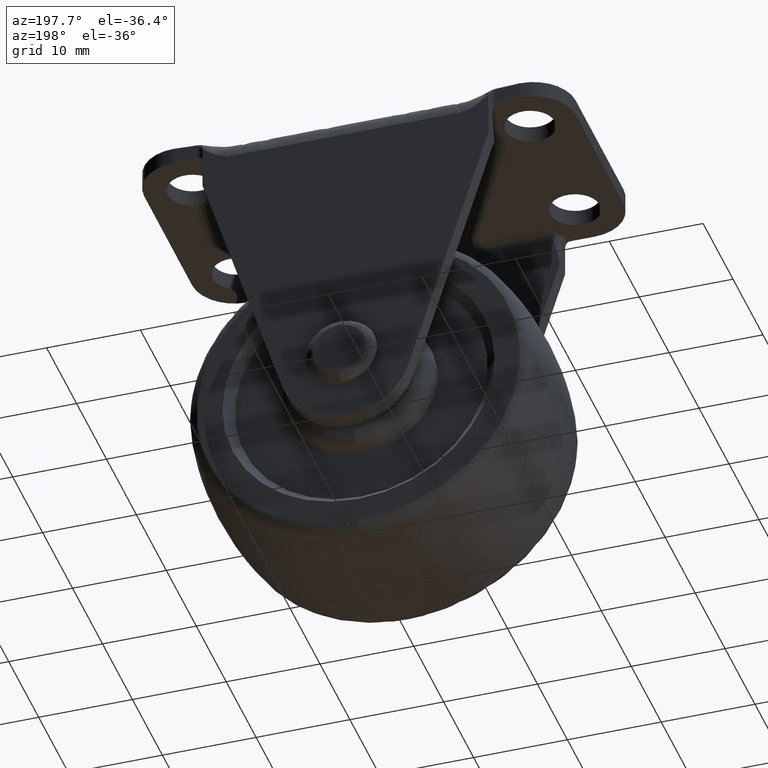
[diagram: clean part render]
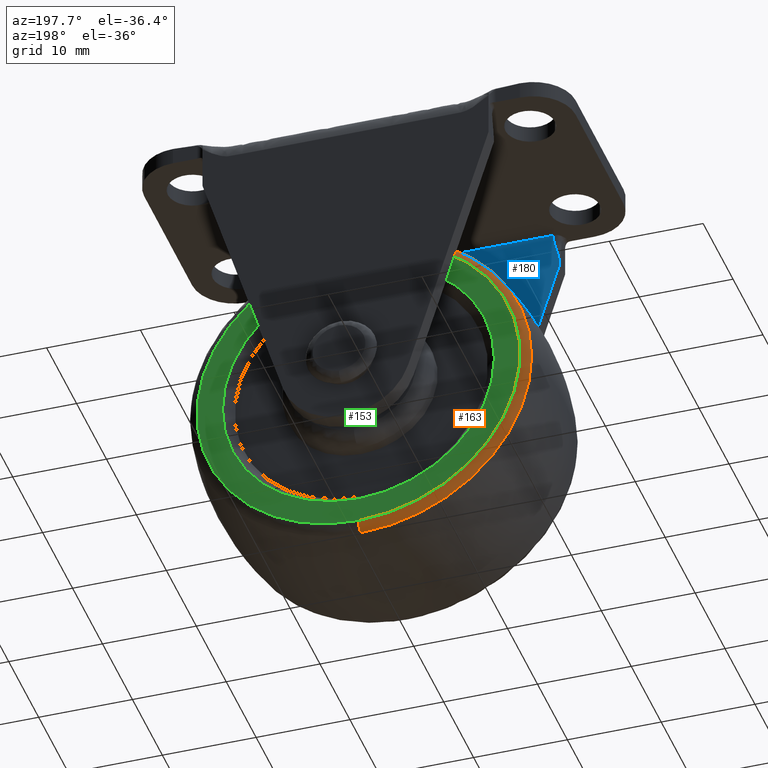
[diagram: same view with three faces highlighted in distinct colors, each labeled with its STEP entity id]
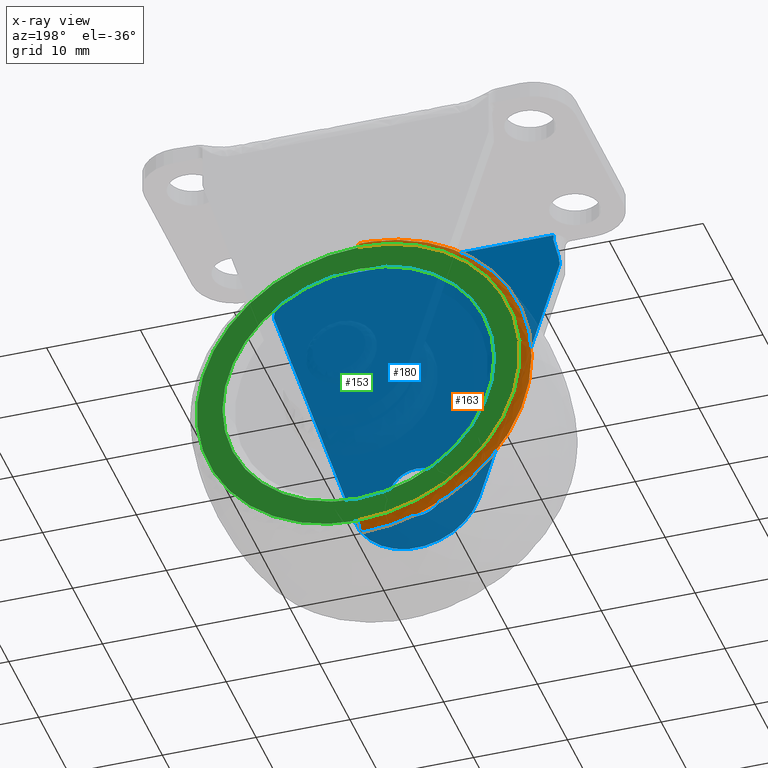
[diagram: x-ray of the same camera — body ghosted, the three highlighted faces saturated]
A machine part, auxiliary view with three faces highlighted in distinct colors.
The next image is the same camera in x-ray (body ghosted, the three faces saturated) — at least one of them is partly hidden behind the body in this view.
Their STEP definitions:

[orange] entity #163 — the highlighted face is a freeform B-spline surface patch.
#163=ADVANCED_FACE('',(#409),#408,.T.);
#408=( BOUNDED_SURFACE() B_SPLINE_SURFACE( 2,2,((#1607,#1608,#1609,#1610,#1611),(#1612,#1613,#1614,#1615,#1616),(#1617,#1618,#1619,#1620,#1621),(#1622,#1623,#1624,#1625,#1626),(#1627,#1628,#1629,#1630,#1631)), .UNSPECIFIED.,.F.,.F.,.F.) B_SPLINE_SURFACE_WITH_KNOTS((3,2,3),(3,2,3),(0.00000000000E+00,5.00000000000E-01,1.00000000000E+00),(0.00000000000E+00,5.00000000000E-01,1.00000000000E+00), .UNSPECIFIED. ) GEOMETRIC_REPRESENTATION_ITEM() RATIONAL_B_SPLINE_SURFACE(((1.00000000000E+00,7.75470499130E-01,1.00000000000E+00,7.75470499130E-01,1.00000000000E+00),(7.07106781187E-01,5.48340448545E-01,7.07106781187E-01,5.48340448545E-01,7.07106781187E-01),(1.00000000000E+00,7.75470499130E-01,1.00000000000E+00,7.75470499130E-01,1.00000000000E+00),(7.07106781187E-01,5.48340448545E-01,7.07106781187E-01,5.48340448545E-01,7.07106781187E-01),(1.00000000000E+00,7.75470499130E-01,1.00000000000E+00,7.75470499130E-01,1.00000000000E+00))) REPRESENTATION_ITEM('') SURFACE() );
#409=FACE_OUTER_BOUND('',#1632,.T.);
#1607=CARTESIAN_POINT('',(-1.99031019875E-15,7.70270893581E+00,1.62526528834E+01));
#1608=CARTESIAN_POINT('',(-2.01052165951E-15,8.50000000000E+00,1.64176974359E+01));
#1609=CARTESIAN_POINT('',(-2.11022843993E-15,8.50000000000E+00,1.72318919736E+01));
#1610=CARTESIAN_POINT('',(-2.20993522035E-15,8.50000000000E+00,1.80460865114E+01));
#1611=CARTESIAN_POINT('',(-2.23014668111E-15,7.70270893581E+00,1.82111310638E+01));
#1612=CARTESIAN_POINT('',(-1.62526528834E+01,7.70270893581E+00,1.62526528834E+01));
#1613=CARTESIAN_POINT('',(-1.64176974359E+01,8.50000000000E+00,1.64176974359E+01));
#1614=CARTESIAN_POINT('',(-1.72318919736E+01,8.50000000000E+00,1.72318919736E+01));
#1615=CARTESIAN_POINT('',(-1.80460865114E+01,8.50000000000E+00,1.80460865114E+01));
#1616=CARTESIAN_POINT('',(-1.82111310638E+01,7.70270893581E+00,1.82111310638E+01));
#1617=CARTESIAN_POINT('',(-1.62526528834E+01,7.70270893581E+00,-9.95122232183E-16));
#1618=CARTESIAN_POINT('',(-1.64176974359E+01,8.50000000000E+00,-1.00522762880E-15));
#1619=CARTESIAN_POINT('',(-1.72318919736E+01,8.50000000000E+00,-1.05507937249E-15));
#1620=CARTESIAN_POINT('',(-1.80460865114E+01,8.50000000000E+00,-1.10493111618E-15));
#1621=CARTESIAN_POINT('',(-1.82111310638E+01,7.70270893581E+00,-1.11503651280E-15));
#1622=CARTESIAN_POINT('',(-1.62526528834E+01,7.70270893581E+00,-1.62526528834E+01));
#1623=CARTESIAN_POINT('',(-1.64176974359E+01,8.50000000000E+00,-1.64176974359E+01));
#1624=CARTESIAN_POINT('',(-1.72318919736E+01,8.50000000000E+00,-1.72318919736E+01));
#1625=CARTESIAN_POINT('',(-1.80460865114E+01,8.50000000000E+00,-1.80460865114E+01));
#1626=CARTESIAN_POINT('',(-1.82111310638E+01,7.70270893581E+00,-1.82111310638E+01));
#1627=CARTESIAN_POINT('',(-6.57343827589E-20,7.70270893581E+00,-1.62526528834E+01));
#1628=CARTESIAN_POINT('',(-6.64019108152E-20,8.50000000000E+00,-1.64176974359E+01));
#1629=CARTESIAN_POINT('',(-6.96949470825E-20,8.50000000000E+00,-1.72318919736E+01));
#1630=CARTESIAN_POINT('',(-7.29879833496E-20,8.50000000000E+00,-1.80460865114E+01));
#1631=CARTESIAN_POINT('',(-7.36555114057E-20,7.70270893581E+00,-1.82111310638E+01));
#1632=EDGE_LOOP('',(#2963,#2964,#2965,#2966));
#2963=ORIENTED_EDGE('',*,*,#3468,.F.);
#2964=ORIENTED_EDGE('',*,*,#3469,.F.);
#2965=ORIENTED_EDGE('',*,*,#3447,.T.);
#2966=ORIENTED_EDGE('',*,*,#3470,.T.);
#3447=EDGE_CURVE('',#3805,#3806,#3807,.T.);
#3468=EDGE_CURVE('',#3926,#3925,#3945,.T.);
#3469=EDGE_CURVE('',#3805,#3926,#3951,.T.);
#3470=EDGE_CURVE('',#3806,#3925,#3957,.T.);
#3805=VERTEX_POINT('',#5507);
#3806=VERTEX_POINT('',#5508);
#3807=CIRCLE('',#5512,1.72318919736E+01);
#3925=VERTEX_POINT('',#5585);
#3926=VERTEX_POINT('',#5586);
#3945=CIRCLE('',#5600,1.82111310638E+01);
#3951=(BOUNDED_CURVE() B_SPLINE_CURVE(2,(#5601,#5602,#5603),.UNSPECIFIED.,.F.,.F.) B_SPLINE_CURVE_WITH_KNOTS((3,3),(5.00000000000E-01,1.00000000000E+00),.UNSPECIFIED.) CURVE() GEOMETRIC_REPRESENTATION_ITEM() RATIONAL_B_SPLINE_CURVE((1.00000000000E+00,7.75470499130E-01,1.00000000000E+00)) REPRESENTATION_ITEM('') );
#3957=(BOUNDED_CURVE() B_SPLINE_CURVE(3,(#5604,#5605,#5606,#5607),.UNSPECIFIED.,.F.,.F.) B_SPLINE_CURVE_WITH_KNOTS((4,4),(4.99999999731E-01,1.00000000000E+00),.UNSPECIFIED.) CURVE() GEOMETRIC_REPRESENTATION_ITEM() RATIONAL_B_SPLINE_CURVE((1.00000000000E+00,1.00000000000E+00,1.00000000000E+00,1.00000000000E+00)) REPRESENTATION_ITEM('') );
#5507=CARTESIAN_POINT('',(1.77635683940E-15,8.50000000000E+00,1.72318919736E+01));
#5508=CARTESIAN_POINT('',(0.00000000000E+00,8.50000000000E+00,-1.72318919736E+01));
#5509=CARTESIAN_POINT('',(0.00000000000E+00,8.50000000000E+00,9.88461408184E-16));
#5510=DIRECTION('',(0.00000000000E+00,-1.00000000000E+00,-0.00000000000E+00));
#5511=DIRECTION('',(-1.22460635382E-16,0.00000000000E+00,-1.00000000000E+00));
#5512=AXIS2_PLACEMENT_3D('',#5509,#5510,#5511);
#5585=CARTESIAN_POINT('',(0.00000000000E+00,7.70270893581E+00,-1.82111310638E+01));
#5586=CARTESIAN_POINT('',(1.18423789293E-15,7.70270893581E+00,1.82111310638E+01));
#5597=CARTESIAN_POINT('',(0.00000000000E+00,7.70270893581E+00,9.88461408184E-16));
#5598=DIRECTION('',(0.00000000000E+00,-1.00000000000E+00,-0.00000000000E+00));
#5599=DIRECTION('',(-1.22460635382E-16,0.00000000000E+00,-1.00000000000E+00));
#5600=AXIS2_PLACEMENT_3D('',#5597,#5598,#5599);
#5601=CARTESIAN_POINT('',(-2.11022843993E-15,8.50000000000E+00,1.72318919736E+01));
#5602=CARTESIAN_POINT('',(-2.20993522035E-15,8.50000000000E+00,1.80460865114E+01));
#5603=CARTESIAN_POINT('',(-2.23014668111E-15,7.70270893581E+00,1.82111310638E+01));
#5604=CARTESIAN_POINT('',(2.96059473178E-15,8.50000000000E+00,-1.72318919729E+01));
#5605=CARTESIAN_POINT('',(2.12579931150E-15,8.46639100016E+00,-1.77473240693E+01));
#5606=CARTESIAN_POINT('',(2.12579931169E-15,8.20062731210E+00,-1.80737370996E+01));
#5607=CARTESIAN_POINT('',(2.96059473233E-15,7.70270893581E+00,-1.82111310638E+01));

[blue] entity #180 — the highlighted planar face has unit normal (0, 1, 0).
#180=ADVANCED_FACE('',(#583,#584),#582,.T.);
#582=PLANE('',#1964);
#583=FACE_OUTER_BOUND('',#1965,.T.);
#584=FACE_BOUND('',#1966,.T.);
#1961=CARTESIAN_POINT('',(-1.82999999841E+01,-1.10000000000E+01,-1.06218470336E+01));
#1962=DIRECTION('',(0.00000000000E+00,1.00000000000E+00,0.00000000000E+00));
#1963=DIRECTION('',(0.00000000000E+00,0.00000000000E+00,1.00000000000E+00));
#1964=AXIS2_PLACEMENT_3D('',#1961,#1962,#1963);
#1965=EDGE_LOOP('',(#3063,#3064,#3065,#3066,#3067,#3068,#3069,#3070));
#1966=EDGE_LOOP('',(#3071,#3072));
#3063=ORIENTED_EDGE('',*,*,#3530,.T.);
#3064=ORIENTED_EDGE('',*,*,#3531,.T.);
#3065=ORIENTED_EDGE('',*,*,#3532,.T.);
#3066=ORIENTED_EDGE('',*,*,#3510,.F.);
#3067=ORIENTED_EDGE('',*,*,#3533,.T.);
#3068=ORIENTED_EDGE('',*,*,#3534,.T.);
#3069=ORIENTED_EDGE('',*,*,#3535,.T.);
#3070=ORIENTED_EDGE('',*,*,#3536,.T.);
#3071=ORIENTED_EDGE('',*,*,#3537,.F.);
#3072=ORIENTED_EDGE('',*,*,#3538,.F.);
#3510=EDGE_CURVE('',#4217,#4224,#4225,.T.);
#3530=EDGE_CURVE('',#4362,#4363,#4364,.T.);
#3531=EDGE_CURVE('',#4363,#4370,#4371,.T.);
#3532=EDGE_CURVE('',#4370,#4224,#4377,.T.);
#3533=EDGE_CURVE('',#4217,#4383,#4384,.T.);
#3534=EDGE_CURVE('',#4383,#4390,#4391,.T.);
#3535=EDGE_CURVE('',#4390,#4397,#4398,.T.);
#3536=EDGE_CURVE('',#4397,#4362,#4404,.T.);
#3537=EDGE_CURVE('',#4410,#4411,#4412,.T.);
#3538=EDGE_CURVE('',#4411,#4410,#4418,.T.);
#4217=VERTEX_POINT('',#5840);
#4224=VERTEX_POINT('',#5850);
#4225=LINE('',#5851,#5852);
#4362=VERTEX_POINT('',#5952);
#4363=VERTEX_POINT('',#5953);
#4364=LINE('',#5954,#5955);
#4370=VERTEX_POINT('',#5957);
#4371=(BOUNDED_CURVE() B_SPLINE_CURVE(3,(#5958,#5959,#5960,#5961,#5962,#5963,#5964,#5965,#5966,#5967,#5968,#5969,#5970),.UNSPECIFIED.,.F.,.F.) B_SPLINE_CURVE_WITH_KNOTS((4,3,3,3,4),(-1.00000000000E+00,-7.50000000000E-01,-5.00000000000E-01,-2.50000000000E-01,-0.00000000000E+00),.UNSPECIFIED.) CURVE() GEOMETRIC_REPRESENTATION_ITEM() RATIONAL_B_SPLINE_CURVE((1.00000000000E+00,1.00000000000E+00,1.00000000000E+00,1.00000000000E+00,1.00000000000E+00,1.00000000000E+00,1.00000000000E+00,1.00000000000E+00,1.00000000000E+00,1.00000000000E+00,1.00000000000E+00,1.00000000000E+00,1.00000000000E+00)) REPRESENTATION_ITEM('') );
#4377=(BOUNDED_CURVE() B_SPLINE_CURVE(2,(#5971,#5972,#5973),.UNSPECIFIED.,.F.,.F.) B_SPLINE_CURVE_WITH_KNOTS((3,3),(0.00000000000E+00,1.00000000000E+00),.UNSPECIFIED.) CURVE() GEOMETRIC_REPRESENTATION_ITEM() RATIONAL_B_SPLINE_CURVE((1.00000000000E+00,1.00000000000E+00,1.00000000000E+00)) REPRESENTATION_ITEM('') );
#4383=VERTEX_POINT('',#5974);
#4384=(BOUNDED_CURVE() B_SPLINE_CURVE(2,(#5975,#5976,#5977),.UNSPECIFIED.,.F.,.F.) B_SPLINE_CURVE_WITH_KNOTS((3,3),(0.00000000000E+00,1.00000000000E+00),.UNSPECIFIED.) CURVE() GEOMETRIC_REPRESENTATION_ITEM() RATIONAL_B_SPLINE_CURVE((1.00000000000E+00,1.00000000000E+00,1.00000000000E+00)) REPRESENTATION_ITEM('') );
#4390=VERTEX_POINT('',#5978);
#4391=(BOUNDED_CURVE() B_SPLINE_CURVE(3,(#5979,#5980,#5981,#5982,#5983,#5984,#5985,#5986,#5987,#5988,#5989,#5990,#5991),.UNSPECIFIED.,.F.,.F.) B_SPLINE_CURVE_WITH_KNOTS((4,3,3,3,4),(0.00000000000E+00,2.50000000000E-01,5.00000000000E-01,7.50000000000E-01,1.00000000000E+00),.UNSPECIFIED.) CURVE() GEOMETRIC_REPRESENTATION_ITEM() RATIONAL_B_SPLINE_CURVE((1.00000000000E+00,1.00000000000E+00,1.00000000000E+00,1.00000000000E+00,1.00000000000E+00,1.00000000000E+00,1.00000000000E+00,1.00000000000E+00,1.00000000000E+00,1.00000000000E+00,1.00000000000E+00,1.00000000000E+00,1.00000000000E+00)) REPRESENTATION_ITEM('') );
#4397=VERTEX_POINT('',#5992);
#4398=LINE('',#5993,#5994);
#4404=CIRCLE('',#5999,7.00000000000E+00);
#4410=VERTEX_POINT('',#6000);
#4411=VERTEX_POINT('',#6001);
#4412=CIRCLE('',#6005,3.00000000000E+00);
#4418=CIRCLE('',#6009,3.00000000000E+00);
#5840=CARTESIAN_POINT('',(1.46068137419E+01,-1.10000000000E+01,2.92000000000E+01));
#5850=CARTESIAN_POINT('',(-1.46068137419E+01,-1.10000000000E+01,2.92000000000E+01));
#5851=CARTESIAN_POINT('',(1.46068137419E+01,-1.10000000000E+01,2.92000000000E+01));
#5852=VECTOR('',#5853,2.92136274839E+01);
#5853=DIRECTION('',(-1.00000000000E+00,0.00000000000E+00,0.00000000000E+00));
#5952=CARTESIAN_POINT('',(-6.68147459710E+00,-1.10000000000E+01,-2.08755771377E+00));
#5953=CARTESIAN_POINT('',(-1.52499990000E+01,-1.10000000000E+01,2.53999990000E+01));
#5954=CARTESIAN_POINT('',(-6.68147459710E+00,-1.10000000000E+01,-2.08755771377E+00));
#5955=VECTOR('',#5956,2.87921062886E+01);
#5956=DIRECTION('',(-2.97599776724E-01,0.00000000000E+00,9.54690721068E-01));
#5957=CARTESIAN_POINT('',(-1.45500000000E+01,-1.10000000000E+01,2.87000000000E+01));
#5958=CARTESIAN_POINT('',(-1.52499999855E+01,-1.10000000000E+01,2.53999991195E+01));
#5959=CARTESIAN_POINT('',(-1.52166666667E+01,-1.10000000000E+01,2.56749990833E+01));
#5960=CARTESIAN_POINT('',(-1.51833333333E+01,-1.10000000000E+01,2.59499991667E+01));
#5961=CARTESIAN_POINT('',(-1.51500000000E+01,-1.10000000000E+01,2.62249992500E+01));
#5962=CARTESIAN_POINT('',(-1.51166666667E+01,-1.10000000000E+01,2.64999993333E+01));
#5963=CARTESIAN_POINT('',(-1.50166666667E+01,-1.10000000000E+01,2.67749994167E+01));
#5964=CARTESIAN_POINT('',(-1.49500000000E+01,-1.10000000000E+01,2.70499995000E+01));
#5965=CARTESIAN_POINT('',(-1.48833333333E+01,-1.10000000000E+01,2.73249995833E+01));
#5966=CARTESIAN_POINT('',(-1.48166666667E+01,-1.10000000000E+01,2.75999996667E+01));
#5967=CARTESIAN_POINT('',(-1.47500000000E+01,-1.10000000000E+01,2.78749997500E+01));
#5968=CARTESIAN_POINT('',(-1.46833333333E+01,-1.10000000000E+01,2.81499998333E+01));
#5969=CARTESIAN_POINT('',(-1.45500000000E+01,-1.10000000000E+01,2.84249999167E+01));
#5970=CARTESIAN_POINT('',(-1.45500000000E+01,-1.10000000000E+01,2.87000000000E+01));
#5971=CARTESIAN_POINT('',(-1.45500000000E+01,-1.10000000000E+01,2.87000000000E+01));
#5972=CARTESIAN_POINT('',(-1.45500612986E+01,-1.10000000000E+01,2.89668287151E+01));
#5973=CARTESIAN_POINT('',(-1.46068137419E+01,-1.10000000000E+01,2.92000000000E+01));
#5974=CARTESIAN_POINT('',(1.45500000000E+01,-1.10000000000E+01,2.87000000000E+01));
#5975=CARTESIAN_POINT('',(1.46068137419E+01,-1.10000000000E+01,2.92000000000E+01));
#5976=CARTESIAN_POINT('',(1.45500612986E+01,-1.10000000000E+01,2.89668287151E+01));
#5977=CARTESIAN_POINT('',(1.45500000000E+01,-1.10000000000E+01,2.87000000000E+01));
#5978=CARTESIAN_POINT('',(1.52500000000E+01,-1.10000000000E+01,2.54000010000E+01));
#5979=CARTESIAN_POINT('',(1.45500000000E+01,-1.10000000000E+01,2.87000000000E+01));
#5980=CARTESIAN_POINT('',(1.45500000000E+01,-1.10000000000E+01,2.84250000833E+01));
#5981=CARTESIAN_POINT('',(1.46833333333E+01,-1.10000000000E+01,2.81500001667E+01));
#5982=CARTESIAN_POINT('',(1.47500000000E+01,-1.10000000000E+01,2.78750002500E+01));
#5983=CARTESIAN_POINT('',(1.48166666667E+01,-1.10000000000E+01,2.76000003333E+01));
#5984=CARTESIAN_POINT('',(1.48833333333E+01,-1.10000000000E+01,2.73250004167E+01));
#5985=CARTESIAN_POINT('',(1.49500000000E+01,-1.10000000000E+01,2.70500005000E+01));
#5986=CARTESIAN_POINT('',(1.50166666667E+01,-1.10000000000E+01,2.67750005833E+01));
#5987=CARTESIAN_POINT('',(1.51166666667E+01,-1.10000000000E+01,2.65000006667E+01));
#5988=CARTESIAN_POINT('',(1.51500000000E+01,-1.10000000000E+01,2.62250007500E+01));
#5989=CARTESIAN_POINT('',(1.51833333333E+01,-1.10000000000E+01,2.59500008333E+01));
#5990=CARTESIAN_POINT('',(1.52166666667E+01,-1.10000000000E+01,2.56750009167E+01));
#5991=CARTESIAN_POINT('',(1.52500000000E+01,-1.10000000000E+01,2.54000010000E+01));
#5992=CARTESIAN_POINT('',(6.68283528603E+00,-1.10000000000E+01,-2.08319808242E+00));
#5993=CARTESIAN_POINT('',(1.52500000000E+01,-1.10000000000E+01,2.54000010000E+01));
#5994=VECTOR('',#5995,2.87875414553E+01);
#5995=DIRECTION('',(-2.97599735194E-01,0.00000000000E+00,-9.54690734014E-01));
#5996=CARTESIAN_POINT('',(7.77555537485E-17,-1.10000000000E+01,0.00000000000E+00));
#5997=DIRECTION('',(0.00000000000E+00,1.00000000000E+00,0.00000000000E+00));
#5998=DIRECTION('',(9.54690738481E-01,-0.00000000000E+00,-2.97599720864E-01));
#5999=AXIS2_PLACEMENT_3D('',#5996,#5997,#5998);
#6000=CARTESIAN_POINT('',(-1.48029736617E-16,-1.10000000000E+01,-3.00000000000E+00));
#6001=CARTESIAN_POINT('',(0.00000000000E+00,-1.10000000000E+01,3.00000000000E+00));
#6002=CARTESIAN_POINT('',(0.00000000000E+00,-1.10000000000E+01,0.00000000000E+00));
#6003=DIRECTION('',(0.00000000000E+00,1.00000000000E+00,0.00000000000E+00));
#6004=DIRECTION('',(-1.22460635382E-16,0.00000000000E+00,1.00000000000E+00));
#6005=AXIS2_PLACEMENT_3D('',#6002,#6003,#6004);
#6006=CARTESIAN_POINT('',(0.00000000000E+00,-1.10000000000E+01,0.00000000000E+00));
#6007=DIRECTION('',(0.00000000000E+00,1.00000000000E+00,0.00000000000E+00));
#6008=DIRECTION('',(-1.22460635382E-16,0.00000000000E+00,1.00000000000E+00));
#6009=AXIS2_PLACEMENT_3D('',#6006,#6007,#6008);

[green] entity #153 — the highlighted planar face has unit normal (0, 1, 0).
#153=ADVANCED_FACE('',(#307,#308),#306,.T.);
#306=PLANE('',#1440);
#307=FACE_OUTER_BOUND('',#1441,.T.);
#308=FACE_BOUND('',#1442,.T.);
#1437=CARTESIAN_POINT('',(-3.58158148906E+01,8.50000000000E+00,-2.24014595657E+01));
#1438=DIRECTION('',(0.00000000000E+00,1.00000000000E+00,0.00000000000E+00));
#1439=DIRECTION('',(0.00000000000E+00,0.00000000000E+00,1.00000000000E+00));
#1440=AXIS2_PLACEMENT_3D('',#1437,#1438,#1439);
#1441=EDGE_LOOP('',(#2923,#2924));
#1442=EDGE_LOOP('',(#2925,#2926));
#2923=ORIENTED_EDGE('',*,*,#3447,.F.);
#2924=ORIENTED_EDGE('',*,*,#3448,.F.);
#2925=ORIENTED_EDGE('',*,*,#3449,.T.);
#2926=ORIENTED_EDGE('',*,*,#3450,.T.);
#3447=EDGE_CURVE('',#3805,#3806,#3807,.T.);
#3448=EDGE_CURVE('',#3806,#3805,#3813,.T.);
#3449=EDGE_CURVE('',#3819,#3820,#3821,.T.);
#3450=EDGE_CURVE('',#3820,#3819,#3827,.T.);
#3805=VERTEX_POINT('',#5507);
#3806=VERTEX_POINT('',#5508);
#3807=CIRCLE('',#5512,1.72318919736E+01);
#3813=CIRCLE('',#5516,1.72318919736E+01);
#3819=VERTEX_POINT('',#5517);
#3820=VERTEX_POINT('',#5518);
#3821=CIRCLE('',#5522,1.45000000000E+01);
#3827=CIRCLE('',#5526,1.45000000000E+01);
#5507=CARTESIAN_POINT('',(1.77635683940E-15,8.50000000000E+00,1.72318919736E+01));
#5508=CARTESIAN_POINT('',(0.00000000000E+00,8.50000000000E+00,-1.72318919736E+01));
#5509=CARTESIAN_POINT('',(0.00000000000E+00,8.50000000000E+00,9.88461408184E-16));
#5510=DIRECTION('',(0.00000000000E+00,-1.00000000000E+00,-0.00000000000E+00));
#5511=DIRECTION('',(-1.22460635382E-16,0.00000000000E+00,-1.00000000000E+00));
#5512=AXIS2_PLACEMENT_3D('',#5509,#5510,#5511);
#5513=CARTESIAN_POINT('',(0.00000000000E+00,8.50000000000E+00,9.88461408184E-16));
#5514=DIRECTION('',(0.00000000000E+00,-1.00000000000E+00,-0.00000000000E+00));
#5515=DIRECTION('',(-1.22460635382E-16,0.00000000000E+00,-1.00000000000E+00));
#5516=AXIS2_PLACEMENT_3D('',#5513,#5514,#5515);
#5517=CARTESIAN_POINT('',(0.00000000000E+00,8.50000000000E+00,-1.45000000000E+01));
#5518=CARTESIAN_POINT('',(5.92118946467E-16,8.50000000000E+00,1.45000000000E+01));
#5519=CARTESIAN_POINT('',(0.00000000000E+00,8.50000000000E+00,9.88461408184E-16));
#5520=DIRECTION('',(0.00000000000E+00,-1.00000000000E+00,-0.00000000000E+00));
#5521=DIRECTION('',(-1.22460635382E-16,0.00000000000E+00,-1.00000000000E+00));
#5522=AXIS2_PLACEMENT_3D('',#5519,#5520,#5521);
#5523=CARTESIAN_POINT('',(0.00000000000E+00,8.50000000000E+00,9.88461408184E-16));
#5524=DIRECTION('',(0.00000000000E+00,-1.00000000000E+00,-0.00000000000E+00));
#5525=DIRECTION('',(-1.22460635382E-16,0.00000000000E+00,-1.00000000000E+00));
#5526=AXIS2_PLACEMENT_3D('',#5523,#5524,#5525);